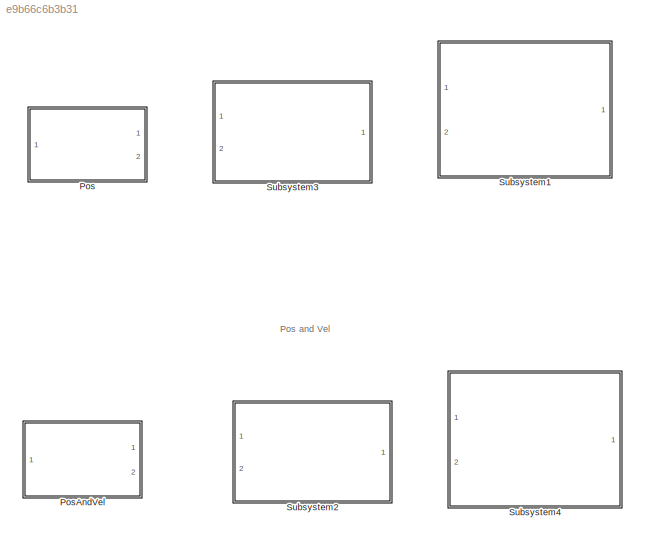
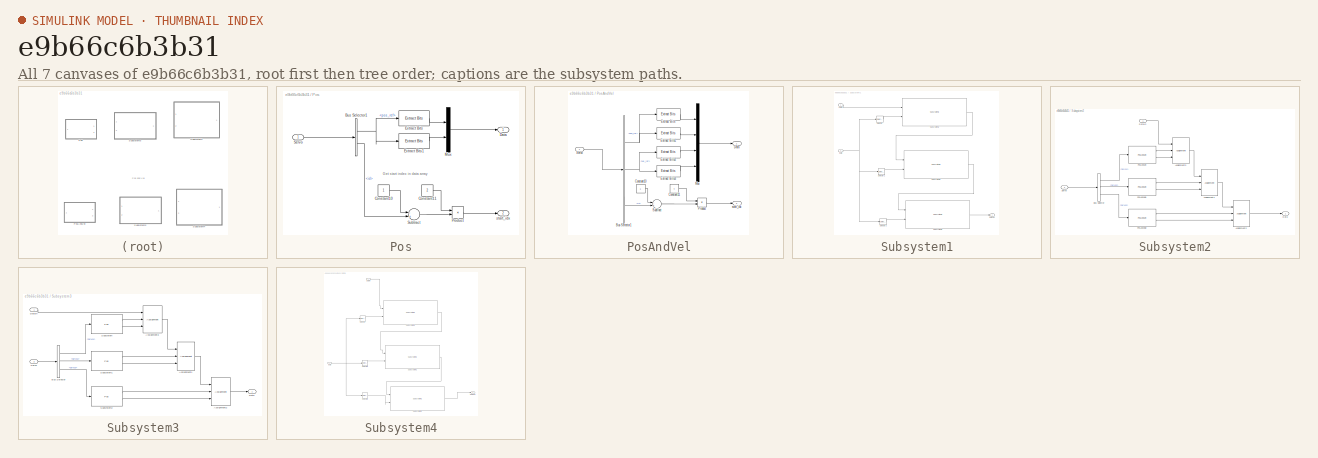
[diagram: thumbnail index - all 7 canvases of the model, root first then tree order]
MODEL slx_e9b66c6b3b31
KIND library
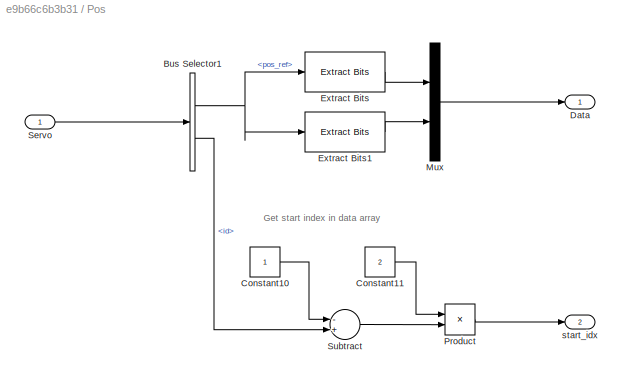
BLOCK [SubSystem] Pos
  Ports = [1, 2]
  RequestExecContextInheritance = off
BLOCK [BusSelector] Pos/Bus Selector1
  OutputSignals = pos_ref,id
  Ports = [1, 2]
BLOCK [Constant] Pos/Constant10
  OutDataTypeStr = uint8
  SampleTime = -1
BLOCK [Constant] Pos/Constant11
  OutDataTypeStr = uint8
  SampleTime = -1
  Value = 2
BLOCK [Outport] Pos/Data
  IconDisplay = Port number
BLOCK [Reference] Pos/Extract Bits  REF=simulink/Logic and Bit
Operations/Extract Bits
  Ports = [1, 1]
  SourceBlock = simulink/Logic and Bit\nOperations/Extract Bits
  SourceType = Extract Bits
  bitIdxRange = [0 7]
  bitsToExtract = Lower half
  numBits = 8
  outScalingMode = Treat bit field as an integer
BLOCK [Reference] Pos/Extract Bits1  REF=simulink/Logic and Bit
Operations/Extract Bits
  Ports = [1, 1]
  SourceBlock = simulink/Logic and Bit\nOperations/Extract Bits
  SourceType = Extract Bits
  bitIdxRange = [0 7]
  bitsToExtract = Upper half
  numBits = 8
  outScalingMode = Treat bit field as an integer
BLOCK [Mux] Pos/Mux
  DisplayOption = bar
  Inputs = 2
  Ports = [2, 1]
BLOCK [Product] Pos/Product
  InputSameDT = off
  OutDataTypeStr = Inherit: Inherit via internal rule
  Ports = [2, 1]
  RndMeth = Floor
  SaturateOnIntegerOverflow = off
BLOCK [Inport] Pos/Servo
  IconDisplay = Port number
BLOCK [Sum] Pos/Subtract
  InputSameDT = off
  Inputs = -+
  OutDataTypeStr = Inherit: Inherit via internal rule
  Ports = [2, 1]
  SaturateOnIntegerOverflow = off
BLOCK [Outport] Pos/start_idx
  IconDisplay = Port number
  Port = 2
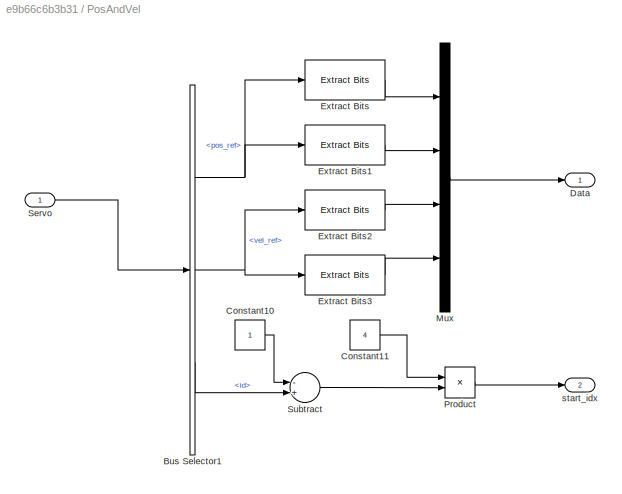
BLOCK [SubSystem] PosAndVel
  Ports = [1, 2]
  RequestExecContextInheritance = off
BLOCK [BusSelector] PosAndVel/Bus Selector1
  OutputSignals = pos_ref,vel_ref,id
  Ports = [1, 3]
BLOCK [Constant] PosAndVel/Constant10
  OutDataTypeStr = uint8
  SampleTime = -1
BLOCK [Constant] PosAndVel/Constant11
  OutDataTypeStr = uint8
  SampleTime = -1
  Value = 4
BLOCK [Outport] PosAndVel/Data
  IconDisplay = Port number
BLOCK [Reference] PosAndVel/Extract Bits  REF=simulink/Logic and Bit
Operations/Extract Bits
  Ports = [1, 1]
  SourceBlock = simulink/Logic and Bit\nOperations/Extract Bits
  SourceType = Extract Bits
  bitIdxRange = [0 7]
  bitsToExtract = Lower half
  numBits = 8
  outScalingMode = Treat bit field as an integer
BLOCK [Reference] PosAndVel/Extract Bits1  REF=simulink/Logic and Bit
Operations/Extract Bits
  Ports = [1, 1]
  SourceBlock = simulink/Logic and Bit\nOperations/Extract Bits
  SourceType = Extract Bits
  bitIdxRange = [0 7]
  bitsToExtract = Upper half
  numBits = 8
  outScalingMode = Treat bit field as an integer
BLOCK [Reference] PosAndVel/Extract Bits2  REF=simulink/Logic and Bit
Operations/Extract Bits
  Ports = [1, 1]
  SourceBlock = simulink/Logic and Bit\nOperations/Extract Bits
  SourceType = Extract Bits
  bitIdxRange = [0 7]
  bitsToExtract = Lower half
  numBits = 8
  outScalingMode = Treat bit field as an integer
BLOCK [Reference] PosAndVel/Extract Bits3  REF=simulink/Logic and Bit
Operations/Extract Bits
  Ports = [1, 1]
  SourceBlock = simulink/Logic and Bit\nOperations/Extract Bits
  SourceType = Extract Bits
  bitIdxRange = [0 7]
  bitsToExtract = Upper half
  numBits = 8
  outScalingMode = Treat bit field as an integer
BLOCK [Mux] PosAndVel/Mux
  DisplayOption = bar
  Ports = [4, 1]
BLOCK [Product] PosAndVel/Product
  InputSameDT = off
  OutDataTypeStr = Inherit: Inherit via internal rule
  Ports = [2, 1]
  RndMeth = Floor
  SaturateOnIntegerOverflow = off
BLOCK [Inport] PosAndVel/Servo
  IconDisplay = Port number
  OutDataTypeStr = Bus: Servo
BLOCK [Sum] PosAndVel/Subtract
  InputSameDT = off
  Inputs = -+
  OutDataTypeStr = Inherit: Inherit via internal rule
  Ports = [2, 1]
  SaturateOnIntegerOverflow = off
BLOCK [Outport] PosAndVel/start_idx
  IconDisplay = Port number
  Port = 2
BLOCK [SubSystem] Subsystem1
  Ports = [2, 1]
  RequestExecContextInheritance = off
BLOCK [Inport] Subsystem1/DataIn
  IconDisplay = Port number
BLOCK [Outport] Subsystem1/DataOut
  IconDisplay = Port number
BLOCK [Selector] Subsystem1/Selector
  IndexMode = Zero-based
  Indices = 0
  InputPortWidth = 3
  Ports = [1, 1]
BLOCK [Selector] Subsystem1/Selector1
  IndexMode = Zero-based
  InputPortWidth = 3
  Ports = [1, 1]
BLOCK [Selector] Subsystem1/Selector2
  IndexMode = Zero-based
  Indices = 2
  InputPortWidth = 3
  Ports = [1, 1]
BLOCK [Reference] Subsystem1/Subsystem1  REF=ServoCommand/Subsystem3
  Ports = [2, 1]
  SourceBlock = ServoCommand/Subsystem3
  SourceType = SubSystem
BLOCK [Reference] Subsystem1/Subsystem2  REF=ServoCommand/Subsystem3
  Ports = [2, 1]
  SourceBlock = ServoCommand/Subsystem3
  SourceType = SubSystem
BLOCK [Reference] Subsystem1/Subsystem3  REF=ServoCommand/Subsystem3
  Ports = [2, 1]
  SourceBlock = ServoCommand/Subsystem3
  SourceType = SubSystem
BLOCK [Inport] Subsystem1/data
  IconDisplay = Port number
  Port = 2
BLOCK [SubSystem] Subsystem2
  Ports = [2, 1]
  RequestExecContextInheritance = off
BLOCK [Assignment] Subsystem2/Assignment1
  IndexMode = Zero-based
  IndexOptions = Starting index (port)
  OutputSizes = 36
  Ports = [3, 1]
BLOCK [Assignment] Subsystem2/Assignment2
  IndexMode = Zero-based
  IndexOptions = Starting index (port)
  OutputSizes = 36
  Ports = [3, 1]
BLOCK [Assignment] Subsystem2/Assignment3
  IndexMode = Zero-based
  IndexOptions = Starting index (port)
  OutputSizes = 36
  Ports = [3, 1]
BLOCK [BusSelector] Subsystem2/Bus Selector
  OutputSignals = Servo1,Servo2,Servo3
  Ports = [1, 3]
BLOCK [Outport] Subsystem2/Data
  IconDisplay = Port number
BLOCK [Inport] Subsystem2/DataIn
  IconDisplay = Port number
BLOCK [Reference] Subsystem2/PosAndVel  REF=ServoCommand/PosAndVel
  Ports = [1, 2]
  SourceBlock = ServoCommand/PosAndVel
  SourceType = SubSystem
BLOCK [Reference] Subsystem2/PosAndVel1  REF=ServoCommand/PosAndVel
  Ports = [1, 2]
  SourceBlock = ServoCommand/PosAndVel
  SourceType = SubSystem
BLOCK [Reference] Subsystem2/PosAndVel2  REF=ServoCommand/PosAndVel
  Ports = [1, 2]
  SourceBlock = ServoCommand/PosAndVel
  SourceType = SubSystem
BLOCK [Inport] Subsystem2/Servo
  IconDisplay = Port number
  OutDataTypeStr = Bus: Leg_ref
  Port = 2
BLOCK [SubSystem] Subsystem3
  Ports = [2, 1]
  RequestExecContextInheritance = off
BLOCK [Assignment] Subsystem3/Assignment1
  IndexMode = Zero-based
  IndexOptions = Starting index (port)
  OutputSizes = 36
  Ports = [3, 1]
BLOCK [Assignment] Subsystem3/Assignment2
  IndexMode = Zero-based
  IndexOptions = Starting index (port)
  OutputSizes = 36
  Ports = [3, 1]
BLOCK [Assignment] Subsystem3/Assignment3
  IndexMode = Zero-based
  IndexOptions = Starting index (port)
  OutputSizes = 36
  Ports = [3, 1]
BLOCK [BusSelector] Subsystem3/Bus Selector
  OutputSignals = Servo1,Servo2,Servo3
  Ports = [1, 3]
BLOCK [Outport] Subsystem3/Data
  IconDisplay = Port number
BLOCK [Inport] Subsystem3/DataIn
  IconDisplay = Port number
BLOCK [Inport] Subsystem3/Servo
  IconDisplay = Port number
  OutDataTypeStr = Bus: Leg_ref
  Port = 2
BLOCK [Reference] Subsystem3/Subsystem  REF=ServoCommand/Pos
  Ports = [1, 2]
  SourceBlock = ServoCommand/Pos
  SourceType = SubSystem
BLOCK [Reference] Subsystem3/Subsystem1  REF=ServoCommand/Pos
  Ports = [1, 2]
  SourceBlock = ServoCommand/Pos
  SourceType = SubSystem
BLOCK [Reference] Subsystem3/Subsystem2  REF=ServoCommand/Pos
  Ports = [1, 2]
  SourceBlock = ServoCommand/Pos
  SourceType = SubSystem
BLOCK [SubSystem] Subsystem4
  Ports = [2, 1]
  RequestExecContextInheritance = off
BLOCK [Inport] Subsystem4/DataIn
  IconDisplay = Port number
BLOCK [Outport] Subsystem4/DataOut
  IconDisplay = Port number
BLOCK [Selector] Subsystem4/Selector
  IndexMode = Zero-based
  Indices = 0
  InputPortWidth = 3
  Ports = [1, 1]
BLOCK [Selector] Subsystem4/Selector1
  IndexMode = Zero-based
  InputPortWidth = 3
  Ports = [1, 1]
BLOCK [Selector] Subsystem4/Selector2
  IndexMode = Zero-based
  Indices = 2
  InputPortWidth = 3
  Ports = [1, 1]
BLOCK [Reference] Subsystem4/Subsystem1  REF=ServoCommand/Subsystem2
  Ports = [2, 1]
  SourceBlock = ServoCommand/Subsystem2
  SourceType = SubSystem
BLOCK [Reference] Subsystem4/Subsystem2  REF=ServoCommand/Subsystem2
  Ports = [2, 1]
  SourceBlock = ServoCommand/Subsystem2
  SourceType = SubSystem
BLOCK [Reference] Subsystem4/Subsystem4  REF=ServoCommand/Subsystem2
  Ports = [2, 1]
  SourceBlock = ServoCommand/Subsystem2
  SourceType = SubSystem
BLOCK [Inport] Subsystem4/data
  IconDisplay = Port number
  Port = 2
ANNOTATION (root): Pos and Vel
ANNOTATION Pos: Get start index in data array
NET Pos/Bus Selector1:1 -> Pos/Extract Bits1:1, Pos/Extract Bits:1
LINE Pos/Bus Selector1:2 -> Pos/Subtract:2
LINE Pos/Constant10:1 -> Pos/Subtract:1
LINE Pos/Constant11:1 -> Pos/Product:1
LINE Pos/Extract Bits1:1 -> Pos/Mux:2
LINE Pos/Extract Bits:1 -> Pos/Mux:1
LINE Pos/Mux:1 -> Pos/Data:1
LINE Pos/Product:1 -> Pos/start_idx:1
LINE Pos/Servo:1 -> Pos/Bus Selector1:1
LINE Pos/Subtract:1 -> Pos/Product:2
NET PosAndVel/Bus Selector1:1 -> PosAndVel/Extract Bits1:1, PosAndVel/Extract Bits:1
NET PosAndVel/Bus Selector1:2 -> PosAndVel/Extract Bits2:1, PosAndVel/Extract Bits3:1
LINE PosAndVel/Bus Selector1:3 -> PosAndVel/Subtract:2
LINE PosAndVel/Constant10:1 -> PosAndVel/Subtract:1
LINE PosAndVel/Constant11:1 -> PosAndVel/Product:1
LINE PosAndVel/Extract Bits1:1 -> PosAndVel/Mux:2
LINE PosAndVel/Extract Bits2:1 -> PosAndVel/Mux:3
LINE PosAndVel/Extract Bits3:1 -> PosAndVel/Mux:4
LINE PosAndVel/Extract Bits:1 -> PosAndVel/Mux:1
LINE PosAndVel/Mux:1 -> PosAndVel/Data:1
LINE PosAndVel/Product:1 -> PosAndVel/start_idx:1
LINE PosAndVel/Servo:1 -> PosAndVel/Bus Selector1:1
LINE PosAndVel/Subtract:1 -> PosAndVel/Product:2
LINE Subsystem1/DataIn:1 -> Subsystem1/Subsystem1:1
LINE Subsystem1/Selector1:1 -> Subsystem1/Subsystem2:2
LINE Subsystem1/Selector2:1 -> Subsystem1/Subsystem3:2
LINE Subsystem1/Selector:1 -> Subsystem1/Subsystem1:2
LINE Subsystem1/Subsystem1:1 -> Subsystem1/Subsystem2:1
LINE Subsystem1/Subsystem2:1 -> Subsystem1/Subsystem3:1
LINE Subsystem1/Subsystem3:1 -> Subsystem1/DataOut:1
NET Subsystem1/data:1 -> Subsystem1/Selector1:1, Subsystem1/Selector2:1, Subsystem1/Selector:1
LINE Subsystem2/Assignment1:1 -> Subsystem2/Assignment2:1
LINE Subsystem2/Assignment2:1 -> Subsystem2/Data:1
LINE Subsystem2/Assignment3:1 -> Subsystem2/Assignment1:1
LINE Subsystem2/Bus Selector:1 -> Subsystem2/PosAndVel:1
LINE Subsystem2/Bus Selector:2 -> Subsystem2/PosAndVel1:1
LINE Subsystem2/Bus Selector:3 -> Subsystem2/PosAndVel2:1
LINE Subsystem2/DataIn:1 -> Subsystem2/Assignment3:1
LINE Subsystem2/PosAndVel1:1 -> Subsystem2/Assignment1:2
LINE Subsystem2/PosAndVel1:2 -> Subsystem2/Assignment1:3
LINE Subsystem2/PosAndVel2:1 -> Subsystem2/Assignment2:2
LINE Subsystem2/PosAndVel2:2 -> Subsystem2/Assignment2:3
LINE Subsystem2/PosAndVel:1 -> Subsystem2/Assignment3:2
LINE Subsystem2/PosAndVel:2 -> Subsystem2/Assignment3:3
LINE Subsystem2/Servo:1 -> Subsystem2/Bus Selector:1
LINE Subsystem3/Assignment1:1 -> Subsystem3/Assignment2:1
LINE Subsystem3/Assignment2:1 -> Subsystem3/Data:1
LINE Subsystem3/Assignment3:1 -> Subsystem3/Assignment1:1
LINE Subsystem3/Bus Selector:1 -> Subsystem3/Subsystem:1
LINE Subsystem3/Bus Selector:2 -> Subsystem3/Subsystem1:1
LINE Subsystem3/Bus Selector:3 -> Subsystem3/Subsystem2:1
LINE Subsystem3/DataIn:1 -> Subsystem3/Assignment3:1
LINE Subsystem3/Servo:1 -> Subsystem3/Bus Selector:1
LINE Subsystem3/Subsystem1:1 -> Subsystem3/Assignment1:2
LINE Subsystem3/Subsystem1:2 -> Subsystem3/Assignment1:3
LINE Subsystem3/Subsystem2:1 -> Subsystem3/Assignment2:2
LINE Subsystem3/Subsystem2:2 -> Subsystem3/Assignment2:3
LINE Subsystem3/Subsystem:1 -> Subsystem3/Assignment3:2
LINE Subsystem3/Subsystem:2 -> Subsystem3/Assignment3:3
LINE Subsystem4/DataIn:1 -> Subsystem4/Subsystem4:1
LINE Subsystem4/Selector1:1 -> Subsystem4/Subsystem1:2
LINE Subsystem4/Selector2:1 -> Subsystem4/Subsystem2:2
LINE Subsystem4/Selector:1 -> Subsystem4/Subsystem4:2
LINE Subsystem4/Subsystem1:1 -> Subsystem4/Subsystem2:1
LINE Subsystem4/Subsystem2:1 -> Subsystem4/DataOut:1
LINE Subsystem4/Subsystem4:1 -> Subsystem4/Subsystem1:1
NET Subsystem4/data:1 -> Subsystem4/Selector1:1, Subsystem4/Selector2:1, Subsystem4/Selector:1
note: NET lines group one-source signal fan-out (src -> all destinations, sorted); 1:1 wires keep LINE
